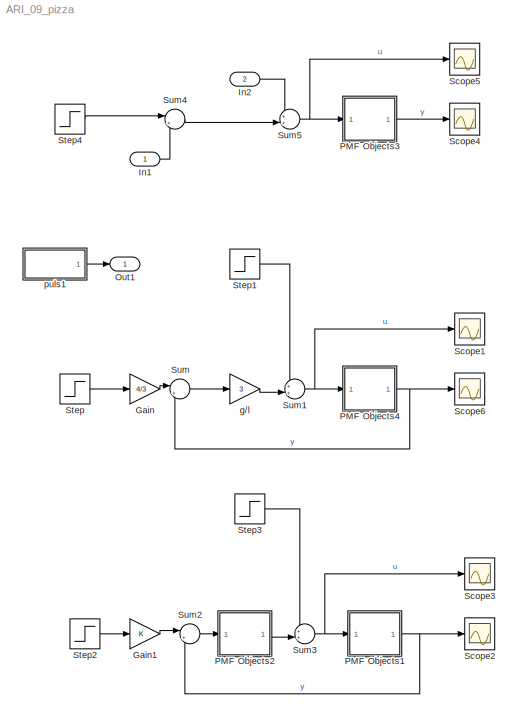
MODEL ARI_09_pizza
KIND model
BLOCK [Gain] Gain
  Gain = 4/3
  OutDataTypeStr = Inherit: Inherit via internal rule
  ParamDataTypeStr = Inherit: Inherit via internal rule
  SID = 1
  SaturateOnIntegerOverflow = off
BLOCK [Gain] Gain1
  OutDataTypeStr = Inherit: Inherit via internal rule
  ParamDataTypeStr = Inherit: Inherit via internal rule
  SID = 2
  SaturateOnIntegerOverflow = off
BLOCK [Inport] In1
  IconDisplay = Port number
  SID = 42
BLOCK [Inport] In2
  IconDisplay = Port number
  Port = 2
  SID = 43
BLOCK [Outport] Out1
  IconDisplay = Port number
  SID = 44
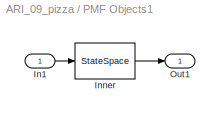
BLOCK [SubSystem] PMF Objects1
  FunctionWithSeparateData = off
  MaskHideContents = off
  MinAlgLoopOccurrences = off
  Opaque = off
  Ports = [1, 1]
  PropExecContextOutsideSubsystem = off
  RTWSystemCode = Auto
  RequestExecContextInheritance = off
  SID = 3
BLOCK [Inport] PMF Objects1/In1
  IconDisplay = Port number
  SID = 4
BLOCK [StateSpace] PMF Objects1/Inner
  A = A
  B = B
  C = C
  D = D
  SID = 5
  X0 = InCon
BLOCK [Outport] PMF Objects1/Out1
  IconDisplay = Port number
  SID = 6
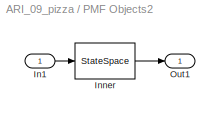
BLOCK [SubSystem] PMF Objects2
  FunctionWithSeparateData = off
  MaskHideContents = off
  MinAlgLoopOccurrences = off
  Opaque = off
  Ports = [1, 1]
  PropExecContextOutsideSubsystem = off
  RTWSystemCode = Auto
  RequestExecContextInheritance = off
  SID = 7
BLOCK [Inport] PMF Objects2/In1
  IconDisplay = Port number
  SID = 8
BLOCK [StateSpace] PMF Objects2/Inner
  A = A
  B = B
  C = C
  D = D
  SID = 9
  X0 = InCon
BLOCK [Outport] PMF Objects2/Out1
  IconDisplay = Port number
  SID = 10
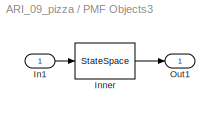
BLOCK [SubSystem] PMF Objects3
  FunctionWithSeparateData = off
  MaskHideContents = off
  MinAlgLoopOccurrences = off
  Opaque = off
  Ports = [1, 1]
  PropExecContextOutsideSubsystem = off
  RTWSystemCode = Auto
  RequestExecContextInheritance = off
  SID = 11
BLOCK [Inport] PMF Objects3/In1
  IconDisplay = Port number
  SID = 12
BLOCK [StateSpace] PMF Objects3/Inner
  A = A
  B = B
  C = C
  D = D
  SID = 13
  X0 = InCon
BLOCK [Outport] PMF Objects3/Out1
  IconDisplay = Port number
  SID = 14
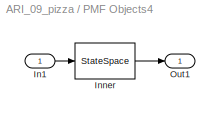
BLOCK [SubSystem] PMF Objects4
  FunctionWithSeparateData = off
  MaskHideContents = off
  MinAlgLoopOccurrences = off
  Opaque = off
  Ports = [1, 1]
  PropExecContextOutsideSubsystem = off
  RTWSystemCode = Auto
  RequestExecContextInheritance = off
  SID = 15
BLOCK [Inport] PMF Objects4/In1
  IconDisplay = Port number
  SID = 16
BLOCK [StateSpace] PMF Objects4/Inner
  A = A
  B = B
  C = C
  D = D
  SID = 17
  X0 = InCon
BLOCK [Outport] PMF Objects4/Out1
  IconDisplay = Port number
  SID = 18
BLOCK [Scope] Scope1
  DataFormat = StructureWithTime
  Floating = off
  NumInputPorts = 1
  Ports = [1]
  SID = 19
  SampleTime = 0
  SaveName = ScopeData1
  ShowLegends = off
BLOCK [Scope] Scope2
  DataFormat = StructureWithTime
  Floating = off
  NumInputPorts = 1
  Ports = [1]
  SID = 20
  SampleTime = 0
  SaveName = ScopeData2
  ShowLegends = off
BLOCK [Scope] Scope3
  DataFormat = StructureWithTime
  Floating = off
  NumInputPorts = 1
  Ports = [1]
  SID = 21
  SampleTime = 0
  SaveName = ScopeData3
  ShowLegends = off
BLOCK [Scope] Scope4
  DataFormat = StructureWithTime
  Floating = off
  NumInputPorts = 1
  Ports = [1]
  SID = 22
  SampleTime = 0
  SaveName = ScopeData4
  ShowLegends = off
BLOCK [Scope] Scope5
  DataFormat = StructureWithTime
  Floating = off
  NumInputPorts = 1
  Ports = [1]
  SID = 23
  SampleTime = 0
  SaveName = ScopeData5
  ShowLegends = off
BLOCK [Scope] Scope6
  DataFormat = StructureWithTime
  Floating = off
  NumInputPorts = 1
  Ports = [1]
  SID = 24
  SampleTime = 0
  ShowLegends = off
BLOCK [Step] Step
  SID = 25
  SampleTime = 0
  Time = 0
BLOCK [Step] Step1
  After = -1
  SID = 26
  SampleTime = 0
  Time = 5
BLOCK [Step] Step2
  SID = 27
  SampleTime = 0
  Time = 0
BLOCK [Step] Step3
  After = -1
  SID = 28
  SampleTime = 0
  Time = 5
BLOCK [Step] Step4
  SID = 29
  SampleTime = 0
  Time = 0
BLOCK [Sum] Sum
  IconShape = round
  InputSameDT = off
  Inputs = |+-
  OutDataTypeStr = Inherit: Inherit via internal rule
  Ports = [2, 1]
  SID = 31
  SaturateOnIntegerOverflow = off
BLOCK [Sum] Sum1
  IconShape = round
  InputSameDT = off
  Inputs = ++|
  OutDataTypeStr = Inherit: Inherit via internal rule
  Ports = [2, 1]
  SID = 32
  SaturateOnIntegerOverflow = off
BLOCK [Sum] Sum2
  IconShape = round
  InputSameDT = off
  Inputs = |+-
  OutDataTypeStr = Inherit: Inherit via internal rule
  Ports = [2, 1]
  SID = 33
  SaturateOnIntegerOverflow = off
BLOCK [Sum] Sum3
  IconShape = round
  InputSameDT = off
  Inputs = ++|
  OutDataTypeStr = Inherit: Inherit via internal rule
  Ports = [2, 1]
  SID = 34
  SaturateOnIntegerOverflow = off
BLOCK [Sum] Sum4
  IconShape = round
  InputSameDT = off
  Inputs = |+-
  OutDataTypeStr = Inherit: Inherit via internal rule
  Ports = [2, 1]
  SID = 35
  SaturateOnIntegerOverflow = off
BLOCK [Sum] Sum5
  IconShape = round
  InputSameDT = off
  Inputs = ++|
  OutDataTypeStr = Inherit: Inherit via internal rule
  Ports = [2, 1]
  SID = 36
  SaturateOnIntegerOverflow = off
BLOCK [Gain] g//l
  Gain = 3
  OutDataTypeStr = Inherit: Inherit via internal rule
  ParamDataTypeStr = Inherit: Inherit via internal rule
  SID = 37
  SaturateOnIntegerOverflow = off
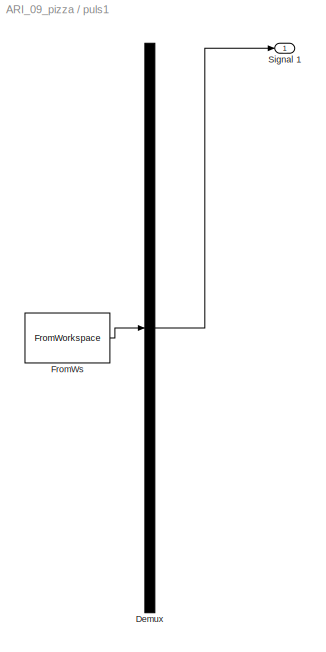
BLOCK [SubSystem] puls1
  ClipboardFcn = sigbuilder_block('clipboard');
  CloseFcn = sigbuilder_block('close');
  ContinueFcn = sigbuilder_block('continue')
  CopyFcn = sigbuilder_block('copy');
  DeleteFcn = sigbuilder_block('delete');
  FunctionWithSeparateData = off
  LoadFcn = sigbuilder_block('load');
  MaskHideContents = on
  MinAlgLoopOccurrences = off
  ModelCloseFcn = sigbuilder_block('modelClose');
  NameChangeFcn = sigbuilder_block('namechange');
  Opaque = off
  OpenFcn = sigbuilder_block('open',[437.6 199.2 550.4 400 ]);
  PauseFcn = sigbuilder_block('pause')
  Ports = [0, 1]
  PreSaveFcn = sigbuilder_block('preSave');
  PropExecContextOutsideSubsystem = off
  RTWSystemCode = Auto
  RequestExecContextInheritance = off
  SID = 38
  StartFcn = sigbuilder_block('start');
  StopFcn = sigbuilder_block('stop');
  Tag = STV Subsys
BLOCK [Demux] puls1/Demux
  Outputs = 1
  Ports = [1, 1]
  SID = 39
  Tag = STV Demux
BLOCK [FromWorkspace] puls1/FromWs
  SID = 40
  SampleTime = 0
  SigBuilderData = DataTag0
  Tag = STV FromWs
  VariableName = tuvar
  VnvData = DataTag1
  ZeroCross = on
BLOCK [Outport] puls1/Signal 1
  IconDisplay = Port number
  SID = 41
  Tag = STV Outport
LINE Gain1:1 -> Sum2:1
LINE Gain:1 -> Sum:1
LINE In1:1 -> Sum4:2
LINE In2:1 -> Sum5:1
LINE PMF Objects1/In1:1 -> PMF Objects1/Inner:1
LINE PMF Objects1/Inner:1 -> PMF Objects1/Out1:1
NET PMF Objects1:1 -> Scope2:1, Sum2:2
LINE PMF Objects2/In1:1 -> PMF Objects2/Inner:1
LINE PMF Objects2/Inner:1 -> PMF Objects2/Out1:1
LINE PMF Objects2:1 -> Sum3:2
LINE PMF Objects3/In1:1 -> PMF Objects3/Inner:1
LINE PMF Objects3/Inner:1 -> PMF Objects3/Out1:1
LINE PMF Objects3:1 -> Scope4:1
LINE PMF Objects4/In1:1 -> PMF Objects4/Inner:1
LINE PMF Objects4/Inner:1 -> PMF Objects4/Out1:1
NET PMF Objects4:1 -> Scope6:1, Sum:2
LINE Step1:1 -> Sum1:1
LINE Step2:1 -> Gain1:1
LINE Step3:1 -> Sum3:1
LINE Step4:1 -> Sum4:1
LINE Step:1 -> Gain:1
NET Sum1:1 -> PMF Objects4:1, Scope1:1
LINE Sum2:1 -> PMF Objects2:1
NET Sum3:1 -> PMF Objects1:1, Scope3:1
LINE Sum4:1 -> Sum5:2
NET Sum5:1 -> PMF Objects3:1, Scope5:1
LINE Sum:1 -> g//l:1
LINE g//l:1 -> Sum1:2
LINE puls1/Demux:1 -> puls1/Signal 1:1
LINE puls1/FromWs:1 -> puls1/Demux:1
LINE puls1:1 -> Out1:1
note: NET lines group one-source signal fan-out (src -> all destinations, sorted); 1:1 wires keep LINE
